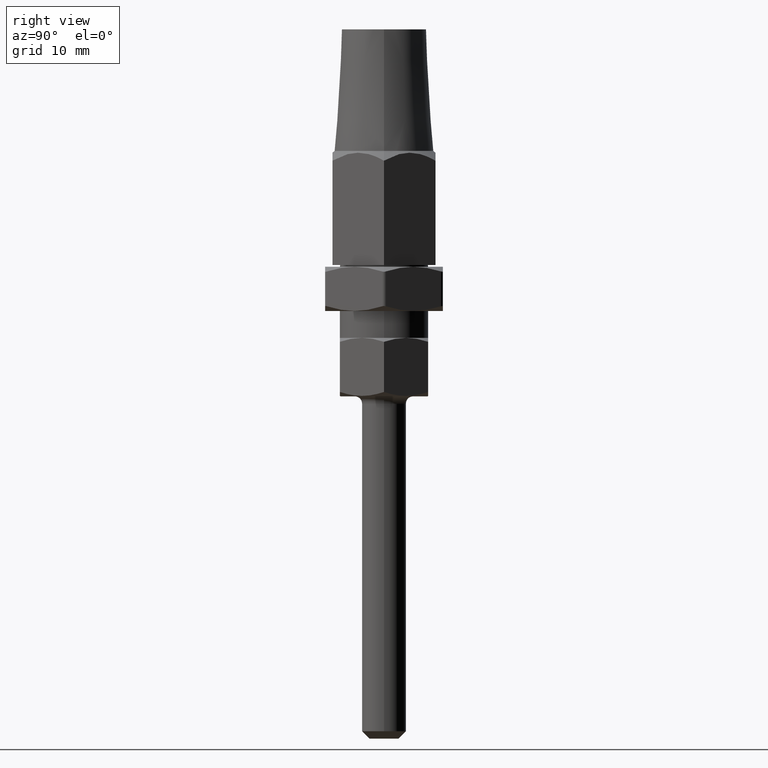
[diagram: clean part render]
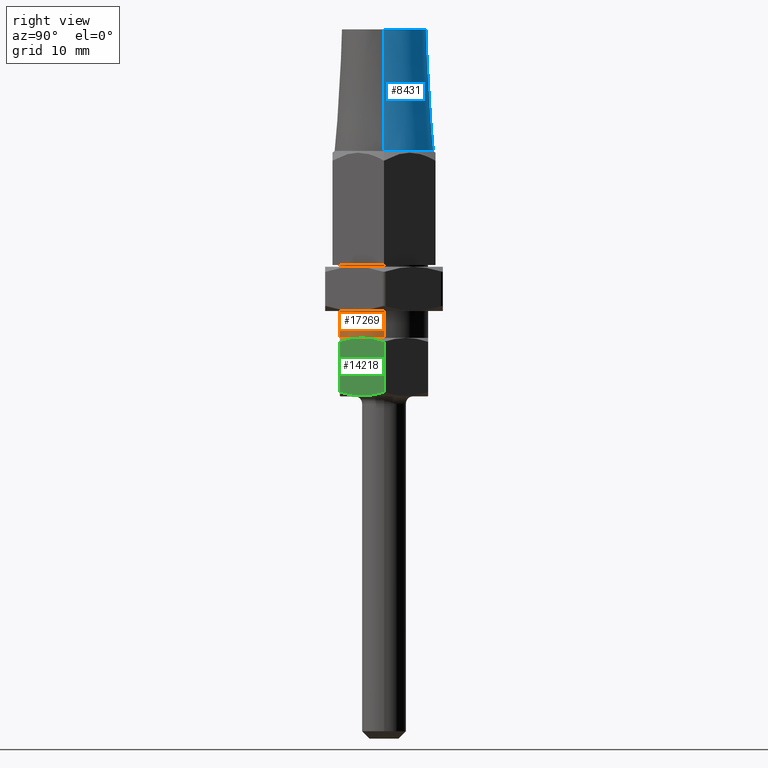
[diagram: same view with three faces highlighted in distinct colors, each labeled with its STEP entity id]
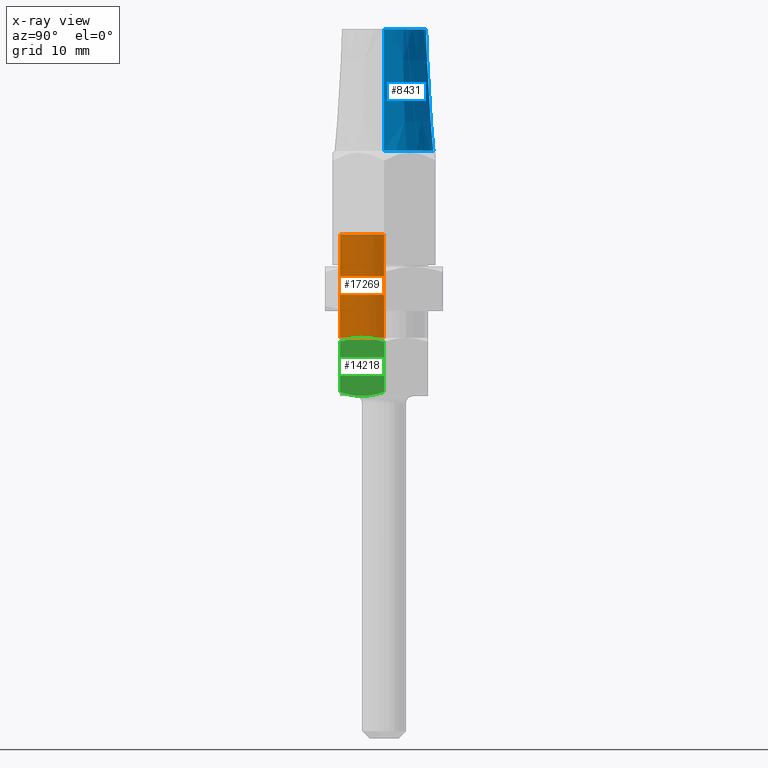
[diagram: x-ray of the same camera — body ghosted, the three highlighted faces saturated]
A machine part, right view with three faces highlighted in distinct colors.
The next image is the same camera in x-ray (body ghosted, the three faces saturated) — at least one of them is partly hidden behind the body in this view.
Their STEP definitions:

[orange] entity #17269 — the highlighted cylindrical surface (partial cylindrical patch) has radius 6 mm, axis along (0, 0, 1).
#2 = ORIENTED_EDGE ( 'NONE', *, *, #4022, .F. ) ;
#346 = EDGE_CURVE ( 'NONE', #10692, #5969, #13654, .T. ) ;
#524 = CARTESIAN_POINT ( 'NONE',  ( 0.0000000000000000000, -6.000000000000001800, 3.942264973081036800 ) ) ;
#746 = CARTESIAN_POINT ( 'NONE',  ( 0.0000000000000000000, -9.080037353748498200E-016, 3.942264973081038600 ) ) ;
#839 = AXIS2_PLACEMENT_3D ( 'NONE', #4394, #2896, #15330 ) ;
#1175 = CARTESIAN_POINT ( 'NONE',  ( 0.0000000000000000000, 0.0000000000000000000, -500000.0000000000600 ) ) ;
#1343 = VERTEX_POINT ( 'NONE', #13477 ) ;
#1418 = VERTEX_POINT ( 'NONE', #9834 ) ;
#2488 = DIRECTION ( 'NONE',  ( 0.0000000000000000000, 0.0000000000000000000, 1.000000000000000000 ) ) ;
#2779 = CIRCLE ( 'NONE', #14837, 6.000000000000000900 ) ;
#2896 = DIRECTION ( 'NONE',  ( 0.0000000000000000000, -2.303253945574359900E-016, 1.000000000000000000 ) ) ;
#2947 = CARTESIAN_POINT ( 'NONE',  ( -6.000000000000000900, 7.347880794884119700E-016, 17.99999999991541700 ) ) ;
#3428 = CIRCLE ( 'NONE', #11788, 6.000000000000000900 ) ;
#3518 = DIRECTION ( 'NONE',  ( 0.0000000000000000000, 0.0000000000000000000, -1.000000000000000000 ) ) ;
#3582 = DIRECTION ( 'NONE',  ( 0.0000000000000000000, 1.000000000000000000, 2.891205793294677800E-016 ) ) ;
#3668 = DIRECTION ( 'NONE',  ( -1.776356839400250500E-015, 1.000000000000000000, 2.891205793294677800E-016 ) ) ;
#3698 = EDGE_CURVE ( 'NONE', #1343, #9201, #11274, .T. ) ;
#3706 = DIRECTION ( 'NONE',  ( 0.0000000000000000000, -2.303253945574359900E-016, 1.000000000000000000 ) ) ;
#3737 = AXIS2_PLACEMENT_3D ( 'NONE', #1175, #10773, #17441 ) ;
#3739 = ORIENTED_EDGE ( 'NONE', *, *, #8042, .T. ) ;
#3878 = ORIENTED_EDGE ( 'NONE', *, *, #16396, .T. ) ;
#3952 = ORIENTED_EDGE ( 'NONE', *, *, #8458, .T. ) ;
#4022 = EDGE_CURVE ( 'NONE', #9147, #5969, #16246, .T. ) ;
#4157 = EDGE_CURVE ( 'NONE', #16245, #1343, #2779, .T. ) ;
#4394 = CARTESIAN_POINT ( 'NONE',  ( 0.0000000000000000000, -9.080037353748498200E-016, 3.942264973081038600 ) ) ;
#4422 = AXIS2_PLACEMENT_3D ( 'NONE', #6316, #3706, #5065 ) ;
#4766 = LINE ( 'NONE', #13563, #17383 ) ;
#5065 = DIRECTION ( 'NONE',  ( 1.776356839400250500E-015, 1.000000000000000000, 2.891205793294677800E-016 ) ) ;
#5069 = CARTESIAN_POINT ( 'NONE',  ( -6.000000000000000900, 7.347880794884119700E-016, -500000.0000000000600 ) ) ;
#5085 = DIRECTION ( 'NONE',  ( 0.0000000000000000000, -2.303253945574359900E-016, 1.000000000000000000 ) ) ;
#5156 = EDGE_LOOP ( 'NONE', ( #2, #3952, #3739, #9155, #5439, #3878, #5818 ) ) ;
#5341 = DIRECTION ( 'NONE',  ( 0.0000000000000000000, 0.0000000000000000000, 1.000000000000000000 ) ) ;
#5439 = ORIENTED_EDGE ( 'NONE', *, *, #3698, .T. ) ;
#5818 = ORIENTED_EDGE ( 'NONE', *, *, #346, .T. ) ;
#5969 = VERTEX_POINT ( 'NONE', #2947 ) ;
#6191 = DIRECTION ( 'NONE',  ( 0.0000000000000000000, -2.303253945574359900E-016, 1.000000000000000000 ) ) ;
#6316 = CARTESIAN_POINT ( 'NONE',  ( 0.0000000000000000000, -9.080037353748498200E-016, 3.942264973081038600 ) ) ;
#8042 = EDGE_CURVE ( 'NONE', #1418, #16245, #16261, .T. ) ;
#8458 = EDGE_CURVE ( 'NONE', #9147, #1418, #3428, .T. ) ;
#9011 = CARTESIAN_POINT ( 'NONE',  ( 0.0000000000000000000, 0.0000000000000000000, 17.99999999991541700 ) ) ;
#9147 = VERTEX_POINT ( 'NONE', #14077 ) ;
#9155 = ORIENTED_EDGE ( 'NONE', *, *, #4157, .T. ) ;
#9201 = VERTEX_POINT ( 'NONE', #16186 ) ;
#9834 = CARTESIAN_POINT ( 'NONE',  ( -5.196152422706632000, -3.000000000000002200, 3.942264973081037700 ) ) ;
#10692 = VERTEX_POINT ( 'NONE', #12028 ) ;
#10773 = DIRECTION ( 'NONE',  ( 0.0000000000000000000, 0.0000000000000000000, 1.000000000000000000 ) ) ;
#11274 = CIRCLE ( 'NONE', #839, 6.000000000000000900 ) ;
#11481 = AXIS2_PLACEMENT_3D ( 'NONE', #9011, #3518, #17187 ) ;
#11788 = AXIS2_PLACEMENT_3D ( 'NONE', #746, #6191, #3582 ) ;
#12028 = CARTESIAN_POINT ( 'NONE',  ( 6.000000000000000900, 0.0000000000000000000, 17.99999999991541700 ) ) ;
#12897 = CYLINDRICAL_SURFACE ( 'NONE', #3737, 6.000000000000000900 ) ;
#13247 = CARTESIAN_POINT ( 'NONE',  ( 0.0000000000000000000, -9.080037353748498200E-016, 3.942264973081038600 ) ) ;
#13477 = CARTESIAN_POINT ( 'NONE',  ( 5.196152422706633800, -3.000000000000000400, 3.942264973081037700 ) ) ;
#13563 = CARTESIAN_POINT ( 'NONE',  ( 6.000000000000000900, 0.0000000000000000000, -500000.0000000000600 ) ) ;
#13654 = CIRCLE ( 'NONE', #11481, 6.000000000000000900 ) ;
#14077 = CARTESIAN_POINT ( 'NONE',  ( -6.000000000000000900, 7.347880794884122700E-016, 3.942264973081038600 ) ) ;
#14187 = FACE_OUTER_BOUND ( 'NONE', #5156, .T. ) ;
#14837 = AXIS2_PLACEMENT_3D ( 'NONE', #13247, #5085, #3668 ) ;
#15330 = DIRECTION ( 'NONE',  ( 3.552713678800500900E-015, 1.000000000000000000, 2.891205793294677800E-016 ) ) ;
#15815 = VECTOR ( 'NONE', #2488, 1000.000000000000000 ) ;
#16186 = CARTESIAN_POINT ( 'NONE',  ( 6.000000000000000900, 1.925929944387235900E-031, 3.942264973081038600 ) ) ;
#16245 = VERTEX_POINT ( 'NONE', #524 ) ;
#16246 = LINE ( 'NONE', #5069, #15815 ) ;
#16261 = CIRCLE ( 'NONE', #4422, 6.000000000000000900 ) ;
#16396 = EDGE_CURVE ( 'NONE', #9201, #10692, #4766, .T. ) ;
#17187 = DIRECTION ( 'NONE',  ( 1.000000000000000000, 0.0000000000000000000, 0.0000000000000000000 ) ) ;
#17269 = ADVANCED_FACE ( 'NONE', ( #14187 ), #12897, .T. ) ;
#17383 = VECTOR ( 'NONE', #5341, 1000.000000000000000 ) ;
#17441 = DIRECTION ( 'NONE',  ( 1.000000000000000000, 0.0000000000000000000, 0.0000000000000000000 ) ) ;

[blue] entity #8431 — the highlighted conical surface has half-angle 3.468 deg.
#628 = CONICAL_SURFACE ( 'NONE', #10856, 5.750000000000000000, 0.06053201978210719800 ) ;
#1385 = CARTESIAN_POINT ( 'NONE',  ( -5.749999999999998200, 0.0000000000000000000, 32.00000000000000000 ) ) ;
#2054 = CARTESIAN_POINT ( 'NONE',  ( 5.750000000000001800, 7.654042494670957600E-016, 32.00000000000000000 ) ) ;
#2549 = EDGE_CURVE ( 'NONE', #11463, #16426, #6751, .T. ) ;
#2783 = DIRECTION ( 'NONE',  ( -0.06049506040189051700, 0.0000000000000000000, -0.9981684966311907800 ) ) ;
#2949 = CARTESIAN_POINT ( 'NONE',  ( -5.749999999999998200, 0.0000000000000000000, 32.00000000000000000 ) ) ;
#3503 = AXIS2_PLACEMENT_3D ( 'NONE', #13299, #5073, #7800 ) ;
#3837 = VECTOR ( 'NONE', #9719, 1000.000000000000200 ) ;
#3918 = CARTESIAN_POINT ( 'NONE',  ( -6.750000000000000900, 0.0000000000000000000, 15.50000000000000000 ) ) ;
#4001 = VECTOR ( 'NONE', #2783, 1000.000000000000200 ) ;
#4234 = VERTEX_POINT ( 'NONE', #12270 ) ;
#5073 = DIRECTION ( 'NONE',  ( -1.092877767060727900E-016, -0.0000000000000000000, -1.000000000000000000 ) ) ;
#5320 = EDGE_CURVE ( 'NONE', #11463, #12712, #15545, .T. ) ;
#6462 = ORIENTED_EDGE ( 'NONE', *, *, #9430, .T. ) ;
#6751 = LINE ( 'NONE', #2949, #4001 ) ;
#6950 = CARTESIAN_POINT ( 'NONE',  ( 5.750000000000001800, 7.041719095097280900E-016, 32.00000000000000000 ) ) ;
#7785 = DIRECTION ( 'NONE',  ( -1.000000000000000000, 0.0000000000000000000, 0.0000000000000000000 ) ) ;
#7800 = DIRECTION ( 'NONE',  ( -1.000000000000000000, 0.0000000000000000000, 0.0000000000000000000 ) ) ;
#8431 = ADVANCED_FACE ( 'NONE', ( #12857 ), #628, .T. ) ;
#9329 = CIRCLE ( 'NONE', #11259, 6.750000000000000900 ) ;
#9430 = EDGE_CURVE ( 'NONE', #12712, #4234, #16868, .T. ) ;
#9719 = DIRECTION ( 'NONE',  ( 0.06049506040189029500, 7.408508208540088300E-018, -0.9981684966311907800 ) ) ;
#10103 = ORIENTED_EDGE ( 'NONE', *, *, #2549, .F. ) ;
#10856 = AXIS2_PLACEMENT_3D ( 'NONE', #12466, #13906, #7785 ) ;
#11259 = AXIS2_PLACEMENT_3D ( 'NONE', #13626, #12177, #13570 ) ;
#11463 = VERTEX_POINT ( 'NONE', #1385 ) ;
#11734 = EDGE_CURVE ( 'NONE', #16426, #4234, #9329, .T. ) ;
#12162 = ORIENTED_EDGE ( 'NONE', *, *, #11734, .F. ) ;
#12177 = DIRECTION ( 'NONE',  ( 4.819247366304686200E-018, -0.0000000000000000000, -1.000000000000000000 ) ) ;
#12270 = CARTESIAN_POINT ( 'NONE',  ( 6.750000000000000900, 8.266365894244635300E-016, 15.50000000000000000 ) ) ;
#12466 = CARTESIAN_POINT ( 'NONE',  ( 1.728549981472478400E-015, 0.0000000000000000000, 32.00000000000000000 ) ) ;
#12712 = VERTEX_POINT ( 'NONE', #2054 ) ;
#12857 = FACE_OUTER_BOUND ( 'NONE', #15181, .T. ) ;
#13299 = CARTESIAN_POINT ( 'NONE',  ( 1.728549981472478400E-015, 0.0000000000000000000, 32.00000000000000000 ) ) ;
#13570 = DIRECTION ( 'NONE',  ( -1.000000000000000000, 0.0000000000000000000, 0.0000000000000000000 ) ) ;
#13626 = CARTESIAN_POINT ( 'NONE',  ( -7.469833417772264100E-017, 0.0000000000000000000, 15.50000000000000000 ) ) ;
#13906 = DIRECTION ( 'NONE',  ( -1.092877767060727900E-016, -0.0000000000000000000, -1.000000000000000000 ) ) ;
#15181 = EDGE_LOOP ( 'NONE', ( #17345, #6462, #12162, #10103 ) ) ;
#15545 = CIRCLE ( 'NONE', #3503, 5.750000000000000000 ) ;
#16426 = VERTEX_POINT ( 'NONE', #3918 ) ;
#16868 = LINE ( 'NONE', #6950, #3837 ) ;
#17345 = ORIENTED_EDGE ( 'NONE', *, *, #5320, .T. ) ;

[green] entity #14218 — the highlighted planar face has unit normal (-0.866, 0.5, 0).
#553 = CARTESIAN_POINT ( 'NONE',  ( 6.928203230275509700, 1.677898197930134900E-015, 3.406366588218800600 ) ) ;
#707 = CARTESIAN_POINT ( 'NONE',  ( 6.359509534234145900, -0.9850063754877759200, -3.704757196719679100 ) ) ;
#782 = EDGE_CURVE ( 'NONE', #17074, #17428, #14715, .T. ) ;
#816 = CARTESIAN_POINT ( 'NONE',  ( 4.464350773553475100, -4.267517637395960700, 3.844275159928910700 ) ) ;
#1102 = CARTESIAN_POINT ( 'NONE',  ( 6.928203230275509700, 1.664489993444656200E-015, -3.406366588218800600 ) ) ;
#1343 = VERTEX_POINT ( 'NONE', #13477 ) ;
#2214 = CARTESIAN_POINT ( 'NONE',  ( 4.603819263078153600, -4.025951127484329800, -3.941512638113000100 ) ) ;
#2309 = ORIENTED_EDGE ( 'NONE', *, *, #15063, .F. ) ;
#2383 = CARTESIAN_POINT ( 'NONE',  ( 3.464101615137755700, -6.000000000000000000, 3.406366588218799200 ) ) ;
#3261 = EDGE_CURVE ( 'NONE', #17428, #7138, #13442, .T. ) ;
#4116 = B_SPLINE_CURVE_WITH_KNOTS ( 'NONE', 3,
 ( #16773, #11372, #5140, #16006, #816, #9207, #14489, #2383 ),
 .UNSPECIFIED., .F., .F.,
 ( 4, 2, 2, 4 ),
 ( 0.003505341872360756000, 0.004378342180183221100, 0.005251342488005684500, 0.006997343103650612000 ),
 .UNSPECIFIED. ) ;
#4428 = CARTESIAN_POINT ( 'NONE',  ( 3.464101615137755700, -6.000000000000000000, 4.000000000000000000 ) ) ;
#4587 = CARTESIAN_POINT ( 'NONE',  ( 6.928203230275509700, 1.648395141703930100E-015, 4.000000000000000000 ) ) ;
#4628 = DIRECTION ( 'NONE',  ( -0.8660254037844388200, 0.4999999999999997800, 0.0000000000000000000 ) ) ;
#4710 = VERTEX_POINT ( 'NONE', #553 ) ;
#5107 = ORIENTED_EDGE ( 'NONE', *, *, #13875, .T. ) ;
#5140 = CARTESIAN_POINT ( 'NONE',  ( 4.901505928155585500, -3.510342698834479700, 3.929598313588519100 ) ) ;
#5585 = CARTESIAN_POINT ( 'NONE',  ( 5.196152422706633800, -3.000000000000000400, 3.942264973081037700 ) ) ;
#5603 = LINE ( 'NONE', #4587, #14828 ) ;
#6332 = CARTESIAN_POINT ( 'NONE',  ( 3.464101615137755700, -6.000000000000000000, -3.406366588218799200 ) ) ;
#6566 = ORIENTED_EDGE ( 'NONE', *, *, #782, .T. ) ;
#7074 = CARTESIAN_POINT ( 'NONE',  ( 5.786333441581434500, -1.977776489646074600, 3.942264973081042600 ) ) ;
#7138 = VERTEX_POINT ( 'NONE', #1102 ) ;
#7632 = CARTESIAN_POINT ( 'NONE',  ( 6.645039832180736500, -0.4904533923439977600, -3.569851052333775000 ) ) ;
#8646 = CARTESIAN_POINT ( 'NONE',  ( 3.464101615137755700, -6.000000000000000000, -3.406366588218799200 ) ) ;
#8973 = CARTESIAN_POINT ( 'NONE',  ( 5.340099316002285200, -2.750676667220234100, -3.942450422601370800 ) ) ;
#9054 = FACE_OUTER_BOUND ( 'NONE', #14036, .T. ) ;
#9154 = CARTESIAN_POINT ( 'NONE',  ( 3.464101615137755700, -6.000000000000000000, 3.406366588218799200 ) ) ;
#9207 = CARTESIAN_POINT ( 'NONE',  ( 4.031725972309546400, -5.016845773764838000, 3.704251809868448900 ) ) ;
#9581 = ORIENTED_EDGE ( 'NONE', *, *, #17536, .T. ) ;
#10078 = DIRECTION ( 'NONE',  ( -0.4999999999999997200, -0.8660254037844387100, 0.0000000000000000000 ) ) ;
#11372 = CARTESIAN_POINT ( 'NONE',  ( 5.049158712764074700, -3.254600574013554400, 3.942264973081042600 ) ) ;
#11916 = CARTESIAN_POINT ( 'NONE',  ( 5.780705937127991400, -1.987523613279259500, -3.881079275436078100 ) ) ;
#12386 = VECTOR ( 'NONE', #16736, 1000.000000000000000 ) ;
#12436 = CARTESIAN_POINT ( 'NONE',  ( 6.361522264159964000, -0.9815202249943385500, 3.733539996550852000 ) ) ;
#13131 = AXIS2_PLACEMENT_3D ( 'NONE', #15689, #4628, #10078 ) ;
#13442 = B_SPLINE_CURVE_WITH_KNOTS ( 'NONE', 3,
 ( #6332, #17159, #2214, #8973, #14496, #11916, #17089, #707, #7632, #17217 ),
 .UNSPECIFIED., .F., .F.,
 ( 4, 2, 2, 2, 4 ),
 ( 2.380733613611680000E-007, 0.003498790588505989100, 0.004373428717292145300, 0.005248066846078301200, 0.006997343103650612000 ),
 .UNSPECIFIED. ) ;
#13477 = CARTESIAN_POINT ( 'NONE',  ( 5.196152422706633800, -3.000000000000000400, 3.942264973081037700 ) ) ;
#13875 = EDGE_CURVE ( 'NONE', #4710, #1343, #17578, .T. ) ;
#14036 = EDGE_LOOP ( 'NONE', ( #6566, #15688, #2309, #5107, #9581 ) ) ;
#14218 = ADVANCED_FACE ( 'NONE', ( #9054 ), #17050, .F. ) ;
#14489 = CARTESIAN_POINT ( 'NONE',  ( 3.746734769999027700, -5.510465015876794000, 3.569544916260175800 ) ) ;
#14496 = CARTESIAN_POINT ( 'NONE',  ( 5.488047927849360800, -2.494422154591811000, -3.929924316211341300 ) ) ;
#14715 = LINE ( 'NONE', #4428, #12386 ) ;
#14828 = VECTOR ( 'NONE', #17006, 1000.000000000000000 ) ;
#15063 = EDGE_CURVE ( 'NONE', #4710, #7138, #5603, .T. ) ;
#15288 = CARTESIAN_POINT ( 'NONE',  ( 6.928203230275509700, 1.677898197930134900E-015, 3.406366588218800600 ) ) ;
#15688 = ORIENTED_EDGE ( 'NONE', *, *, #3261, .T. ) ;
#15689 = CARTESIAN_POINT ( 'NONE',  ( 3.464101615137755700, -6.000000000000000000, 4.000000000000000000 ) ) ;
#16006 = CARTESIAN_POINT ( 'NONE',  ( 4.609417879921641900, -4.016254038659295300, 3.880579849810362500 ) ) ;
#16736 = DIRECTION ( 'NONE',  ( -0.0000000000000000000, -0.0000000000000000000, -1.000000000000000000 ) ) ;
#16773 = CARTESIAN_POINT ( 'NONE',  ( 5.196152422706633800, -3.000000000000000400, 3.942264973081037700 ) ) ;
#17006 = DIRECTION ( 'NONE',  ( -0.0000000000000000000, -0.0000000000000000000, -1.000000000000000000 ) ) ;
#17050 = PLANE ( 'NONE',  #13131 ) ;
#17074 = VERTEX_POINT ( 'NONE', #9154 ) ;
#17089 = CARTESIAN_POINT ( 'NONE',  ( 5.926053767019155300, -1.735773787137887800, -3.844809897378813600 ) ) ;
#17159 = CARTESIAN_POINT ( 'NONE',  ( 4.029723414941255300, -5.020314304871783800, -3.732928486595476200 ) ) ;
#17217 = CARTESIAN_POINT ( 'NONE',  ( 6.928203230275509700, 1.664489993444656200E-015, -3.406366588218800600 ) ) ;
#17428 = VERTEX_POINT ( 'NONE', #8646 ) ;
#17536 = EDGE_CURVE ( 'NONE', #1343, #17074, #4116, .T. ) ;
#17578 = B_SPLINE_CURVE_WITH_KNOTS ( 'NONE', 3,
 ( #15288, #12436, #7074, #5585 ),
 .UNSPECIFIED., .F., .F.,
 ( 4, 4 ),
 ( 2.380733613610454900E-007, 0.003505341872360756000 ),
 .UNSPECIFIED. ) ;